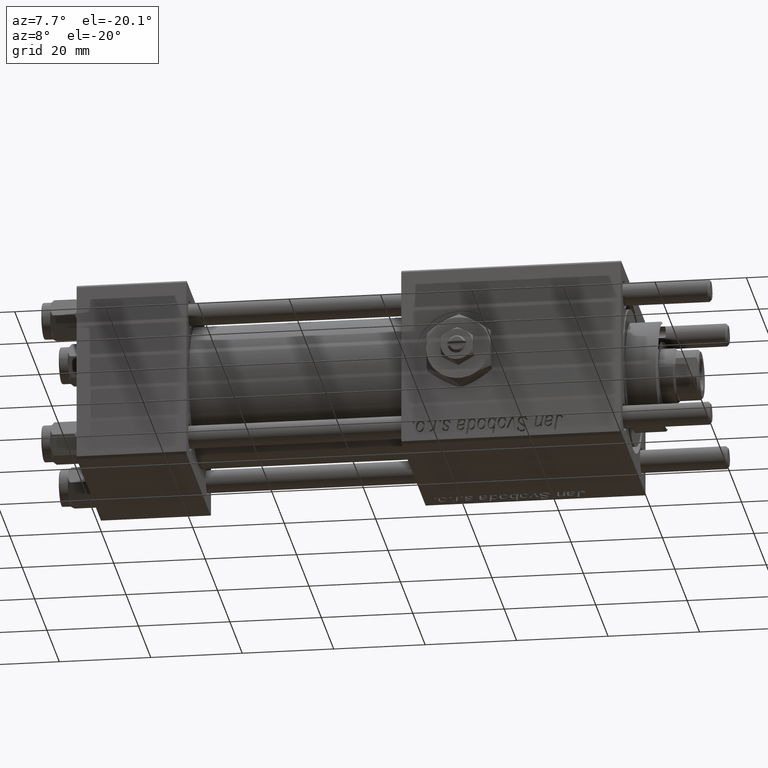
[diagram: clean part render]
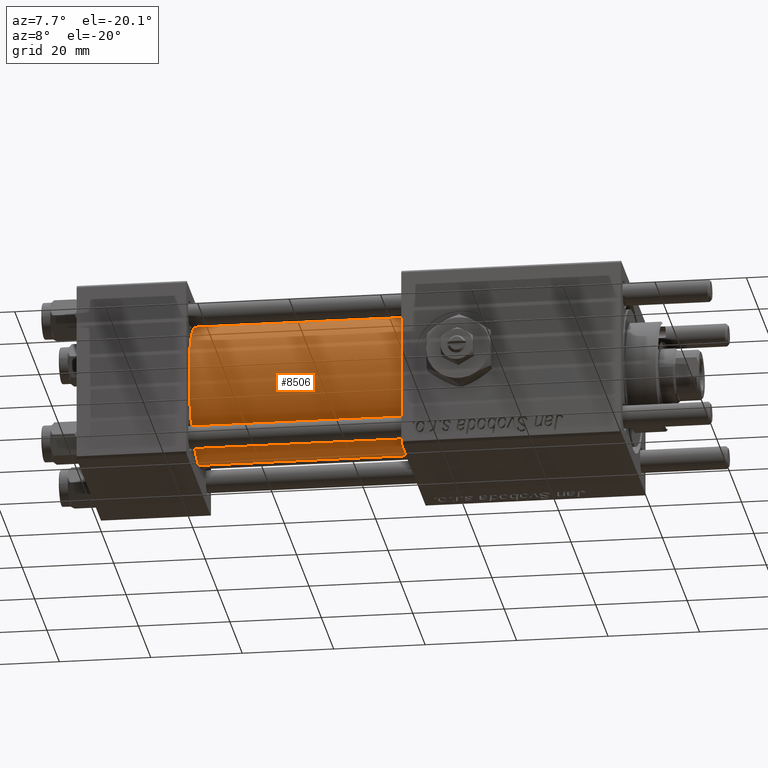
[diagram: same view with one face highlighted and labeled with its STEP entity id]
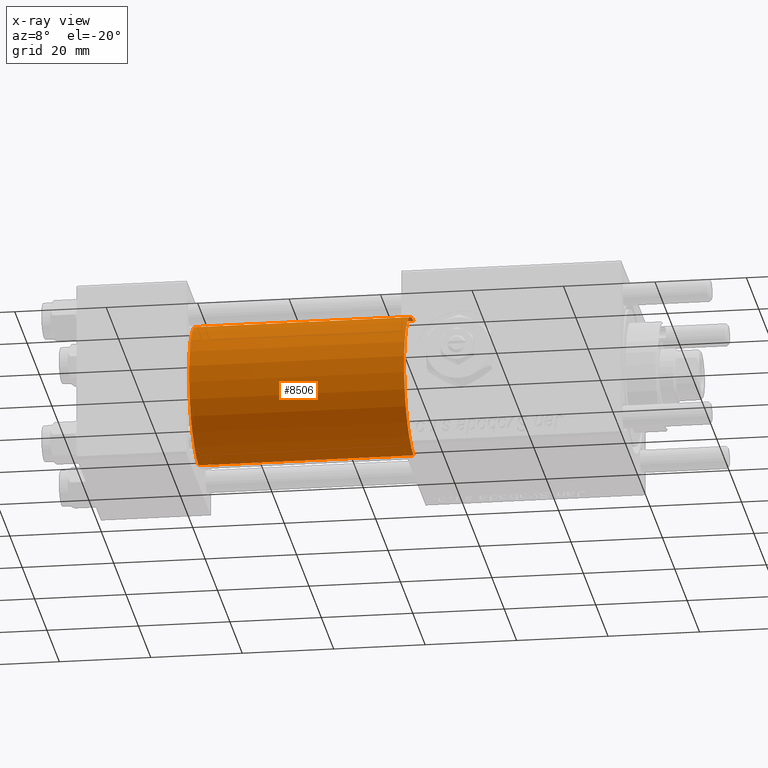
[diagram: x-ray of the same camera — body ghosted, the highlighted face saturated]
A machine part, auxiliary view. The second image highlights one B-rep face of the part: STEP entity #8506.
The next image is the same camera in x-ray: the body ghosted, the highlighted face saturated — about 0% of this face is hidden behind the body in this view.
In plain terms, the highlighted cylindrical surface (partial cylindrical patch) has radius 15.5 mm, axis along (-1, -0, -0).
Its self-contained STEP definition (entity closure, byte-faithful):
#105 = EDGE_CURVE ( 'NONE', #746, #55893, #30328, .T. ) ;
#432 = EDGE_CURVE ( 'NONE', #37512, #746, #1448, .T. ) ;
#525 = CARTESIAN_POINT ( 'NONE',  ( 71.00000000000001421, -2.602085213965210642E-15, 0.000000000000000000 ) ) ;
#746 = VERTEX_POINT ( 'NONE', #47087 ) ;
#1448 = CIRCLE ( 'NONE', #2361, 15.50000000000000000 ) ;
#1477 = DIRECTION ( 'NONE',  ( 0.000000000000000000, 0.000000000000000000, -1.000000000000000000 ) ) ;
#2361 = AXIS2_PLACEMENT_3D ( 'NONE', #9493, #55149, #1477 ) ;
#2740 = DIRECTION ( 'NONE',  ( 1.000000000000000000, 0.000000000000000000, 0.000000000000000000 ) ) ;
#5674 = DIRECTION ( 'NONE',  ( -1.000000000000000000, -0.000000000000000000, -0.000000000000000000 ) ) ;
#7177 = AXIS2_PLACEMENT_3D ( 'NONE', #525, #14758, #54774 ) ;
#8506 = ADVANCED_FACE ( 'NONE', ( #28371 ), #28935, .T. ) ;
#9493 = CARTESIAN_POINT ( 'NONE',  ( 71.00000000000001421, -2.602085213965210642E-15, 0.000000000000000000 ) ) ;
#13176 = ORIENTED_EDGE ( 'NONE', *, *, #105, .F. ) ;
#14758 = DIRECTION ( 'NONE',  ( -1.000000000000000000, -0.000000000000000000, -0.000000000000000000 ) ) ;
#15411 = ORIENTED_EDGE ( 'NONE', *, *, #54569, .T. ) ;
#18444 = LINE ( 'NONE', #54309, #51404 ) ;
#25140 = CARTESIAN_POINT ( 'NONE',  ( 71.00000000000001421, -2.602085213965210642E-15, 15.50000000000000000 ) ) ;
#28371 = FACE_OUTER_BOUND ( 'NONE', #49503, .T. ) ;
#28935 = CYLINDRICAL_SURFACE ( 'NONE', #7177, 15.50000000000000000 ) ;
#29149 = CARTESIAN_POINT ( 'NONE',  ( 71.00000000000001421, -7.038826752868131828E-16, -15.50000000000000000 ) ) ;
#29712 = DIRECTION ( 'NONE',  ( 0.000000000000000000, 0.000000000000000000, 1.000000000000000000 ) ) ;
#30328 = LINE ( 'NONE', #29149, #51586 ) ;
#30533 = CIRCLE ( 'NONE', #56053, 15.50000000000000000 ) ;
#37512 = VERTEX_POINT ( 'NONE', #25140 ) ;
#37990 = ORIENTED_EDGE ( 'NONE', *, *, #54820, .T. ) ;
#41799 = ORIENTED_EDGE ( 'NONE', *, *, #432, .F. ) ;
#42791 = DIRECTION ( 'NONE',  ( -1.000000000000000000, -0.000000000000000000, -0.000000000000000000 ) ) ;
#45209 = CARTESIAN_POINT ( 'NONE',  ( 24.00000000000000000, -2.602085213965210642E-15, 15.50000000000000000 ) ) ;
#47087 = CARTESIAN_POINT ( 'NONE',  ( 71.00000000000001421, -7.038826752868131828E-16, -15.50000000000000000 ) ) ;
#49503 = EDGE_LOOP ( 'NONE', ( #13176, #41799, #37990, #15411 ) ) ;
#51170 = CARTESIAN_POINT ( 'NONE',  ( 24.00000000000000000, -2.602085213965210642E-15, 0.000000000000000000 ) ) ;
#51404 = VECTOR ( 'NONE', #5674, 1000.000000000000000 ) ;
#51586 = VECTOR ( 'NONE', #42791, 1000.000000000000000 ) ;
#52954 = VERTEX_POINT ( 'NONE', #45209 ) ;
#53883 = CARTESIAN_POINT ( 'NONE',  ( 24.00000000000000000, -7.038826752868131828E-16, -15.50000000000000000 ) ) ;
#54309 = CARTESIAN_POINT ( 'NONE',  ( 71.00000000000001421, -2.602085213965210642E-15, 15.50000000000000000 ) ) ;
#54569 = EDGE_CURVE ( 'NONE', #52954, #55893, #30533, .T. ) ;
#54774 = DIRECTION ( 'NONE',  ( 0.000000000000000000, 0.000000000000000000, 1.000000000000000000 ) ) ;
#54820 = EDGE_CURVE ( 'NONE', #37512, #52954, #18444, .T. ) ;
#55149 = DIRECTION ( 'NONE',  ( 1.000000000000000000, 0.000000000000000000, 0.000000000000000000 ) ) ;
#55893 = VERTEX_POINT ( 'NONE', #53883 ) ;
#56053 = AXIS2_PLACEMENT_3D ( 'NONE', #51170, #2740, #29712 ) ;